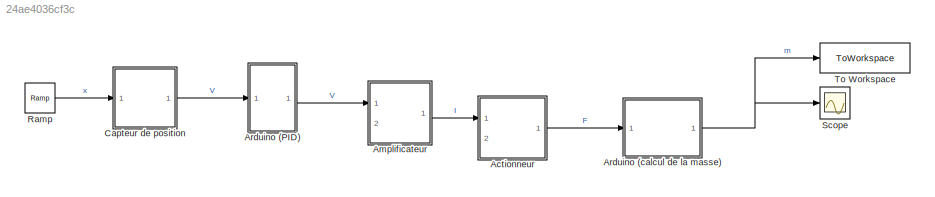
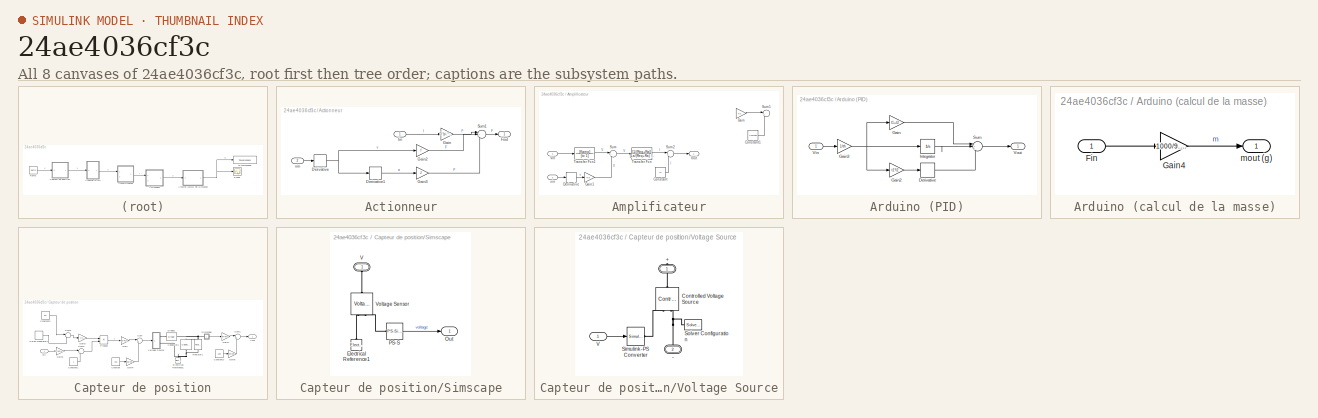
[diagram: thumbnail index - all 8 canvases of the model, root first then tree order]
MODEL slx_24ae4036cf3c
KIND model
CONFIG AbsTol = auto
CONFIG EnableMultiTasking = off
CONFIG FixedStep = auto
CONFIG MaxStep = auto
CONFIG MinStep = auto
CONFIG RelTol = 1e-3
CONFIG SampleTimeConstraint = Unconstrained
CONFIG Solver = VariableStepAuto
CONFIG SolverName = VariableStepAuto
CONFIG StartTime = 0.0
CONFIG StopTime = 2
WORKSPACE source: mxarray member
WORKSPACE t1 = 1
WORKSPACE t2 = 1
WORKSPACE th = 1
BLOCK [SubSystem] Actionneur
  Ports = [2, 1]
  RequestExecContextInheritance = off
BLOCK [Derivative] Actionneur/Derivative
BLOCK [Derivative] Actionneur/Derivative1
BLOCK [Outport] Actionneur/Fout
BLOCK [Gain] Actionneur/Gain
  Gain = D.*pi.*B.*N
BLOCK [Gain] Actionneur/Gain2
  Gain = f
BLOCK [Gain] Actionneur/Gain3
  Gain = J
BLOCK [Inport] Actionneur/Iin
BLOCK [Sum] Actionneur/Sum1
  Inputs = |+--
  Ports = [3, 1]
BLOCK [Inport] Actionneur/xin
  Port = 2
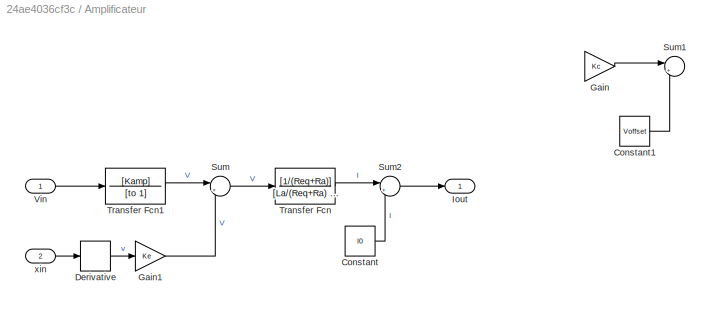
BLOCK [SubSystem] Amplificateur
  Ports = [2, 1]
  RequestExecContextInheritance = off
BLOCK [Constant] Amplificateur/Constant
  Value = I0
BLOCK [Constant] Amplificateur/Constant1
  Commented = on
  Value = Voffset
BLOCK [Derivative] Amplificateur/Derivative
BLOCK [Gain] Amplificateur/Gain
  Commented = on
  Gain = Kc
BLOCK [Gain] Amplificateur/Gain1
  Gain = Ke
BLOCK [Outport] Amplificateur/Iout
BLOCK [Sum] Amplificateur/Sum
  Inputs = |+-
  Ports = [2, 1]
BLOCK [Sum] Amplificateur/Sum1
  Commented = on
  Inputs = |++
  Ports = [2, 1]
BLOCK [Sum] Amplificateur/Sum2
  Inputs = |+-
  Ports = [2, 1]
BLOCK [TransferFcn] Amplificateur/Transfer Fcn
  Denominator = [La/(Req+Ra) 1]
  Numerator = [1/(Req+Ra)]
BLOCK [TransferFcn] Amplificateur/Transfer Fcn1
  Denominator = [to 1]
  Numerator = [Kamp]
BLOCK [Inport] Amplificateur/Vin
BLOCK [Inport] Amplificateur/xin
  Port = 2
BLOCK [SubSystem] Arduino (PID)
  Ports = [1, 1]
  RequestExecContextInheritance = off
BLOCK [Derivative] Arduino (PID)/Derivative
BLOCK [Gain] Arduino (PID)/Gain
  Gain = t1+t2
BLOCK [Gain] Arduino (PID)/Gain2
  Gain = t1*t2
BLOCK [Gain] Arduino (PID)/Gain3
  Gain = 1/th
BLOCK [Integrator] Arduino (PID)/Integrator
  Ports = [1, 1]
BLOCK [Sum] Arduino (PID)/Sum
  Inputs = |+++
  Ports = [3, 1]
BLOCK [Inport] Arduino (PID)/Vin
BLOCK [Outport] Arduino (PID)/Vout
BLOCK [SubSystem] Arduino (calcul de la masse)
  Ports = [1, 1]
  RequestExecContextInheritance = off
BLOCK [Inport] Arduino (calcul de la masse)/Fin
BLOCK [Gain] Arduino (calcul de la masse)/Gain4
  Gain = 1000/9.80665
BLOCK [Outport] Arduino (calcul de la masse)/mout (g)
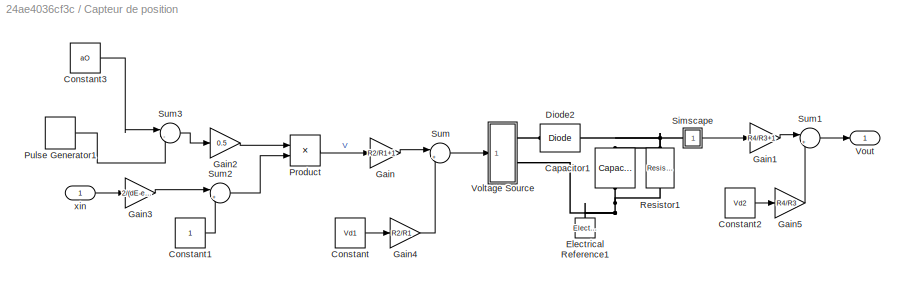
BLOCK [SubSystem] Capteur de position
  Ports = [1, 1]
  RequestExecContextInheritance = off
BLOCK [Reference] Capteur de position/Capacitor1  REF=fl_lib/Electrical/Electrical Elements/Capacitor
  NameLocation = left
  Ports = [0, 0, 0, 0, 0, 1, 1]
  SourceBlock = fl_lib/Electrical/Electrical Elements/Capacitor
  SourceProductBaseCode = SS
  SourceType = Capacitor
BLOCK [Constant] Capteur de position/Constant
  Value = Vd1
BLOCK [Constant] Capteur de position/Constant1
BLOCK [Constant] Capteur de position/Constant2
  Value = Vd2
BLOCK [Constant] Capteur de position/Constant3
  Value = aO
BLOCK [Reference] Capteur de position/Diode2  REF=fl_lib/Electrical/Electrical Elements/Diode
  Ports = [0, 0, 0, 0, 0, 1, 1]
  SourceBlock = fl_lib/Electrical/Electrical Elements/Diode
  SourceProductBaseCode = SS
  SourceType = Diode
BLOCK [Reference] Capteur de position/Electrical Reference1  REF=fl_lib/Electrical/Electrical Elements/Electrical Reference
  NameLocation = right
  Ports = [0, 0, 0, 0, 0, 1]
  SourceBlock = fl_lib/Electrical/Electrical Elements/Electrical Reference
  SourceProductBaseCode = SS
  SourceType = Electrical Reference
BLOCK [Gain] Capteur de position/Gain
  Gain = R2/R1+1
BLOCK [Gain] Capteur de position/Gain1
  Gain = R4/R3+1
BLOCK [Gain] Capteur de position/Gain2
  Gain = 0.5
BLOCK [Gain] Capteur de position/Gain3
  Gain = 2/(dE-eL)
BLOCK [Gain] Capteur de position/Gain4
  Gain = R2/R1
BLOCK [Gain] Capteur de position/Gain5
  Gain = R4/R3
BLOCK [Product] Capteur de position/Product
  Ports = [2, 1]
BLOCK [DiscretePulseGenerator] Capteur de position/Pulse Generator1
  Amplitude = 2*aO
  Period = 0.000001
  Ports = [0, 1]
  PulseType = Time based
  PulseWidth = 50
BLOCK [Reference] Capteur de position/Resistor1  REF=fl_lib/Electrical/Electrical Elements/Resistor
  Ports = [0, 0, 0, 0, 0, 1, 1]
  SourceBlock = fl_lib/Electrical/Electrical Elements/Resistor
  SourceProductBaseCode = SS
  SourceType = Resistor
BLOCK [SubSystem] Capteur de position/Simscape
  Ports = [0, 1, 0, 0, 0, 1]
  RequestExecContextInheritance = off
BLOCK [Reference] Capteur de position/Simscape/Electrical Reference1  REF=fl_lib/Electrical/Electrical Elements/Electrical Reference
  NameLocation = right
  Ports = [0, 0, 0, 0, 0, 1]
  SourceBlock = fl_lib/Electrical/Electrical Elements/Electrical Reference
  SourceProductBaseCode = SS
  SourceType = Electrical Reference
BLOCK [Outport] Capteur de position/Simscape/Out
  VectorParamsAs1DForOutWhenUnconnected = off
BLOCK [Reference] Capteur de position/Simscape/PS-S  REF=nesl_utility/PS-Simulink
Converter
  Ports = [0, 1, 0, 0, 0, 1]
  SourceBlock = nesl_utility/PS-Simulink\nConverter
  SourceProductBaseCode = SS
  SourceType = PS-Simulink\nConverter
BLOCK [PMIOPort] Capteur de position/Simscape/V
  NameLocation = right
  Side = Left
BLOCK [Reference] Capteur de position/Simscape/Voltage Sensor  REF=fl_lib/Electrical/Electrical Sensors/Voltage Sensor
  NameLocation = right
  Ports = [0, 0, 0, 0, 0, 1, 2]
  SourceBlock = fl_lib/Electrical/Electrical Sensors/Voltage Sensor
  SourceProductBaseCode = SS
  SourceType = Voltage Sensor
BLOCK [Sum] Capteur de position/Sum
  Inputs = |+-
  Ports = [2, 1]
BLOCK [Sum] Capteur de position/Sum1
  Inputs = |+-
  Ports = [2, 1]
BLOCK [Sum] Capteur de position/Sum2
  Inputs = |++
  Ports = [2, 1]
BLOCK [Sum] Capteur de position/Sum3
  Inputs = |-+
  Ports = [2, 1]
BLOCK [SubSystem] Capteur de position/Voltage Source
  Ports = [1, 0, 0, 0, 0, 0, 2]
  RequestExecContextInheritance = off
BLOCK [PMIOPort] Capteur de position/Voltage Source/+
  NameLocation = right
  Side = Right
BLOCK [PMIOPort] Capteur de position/Voltage Source/-
  NameLocation = right
  Port = 2
  Side = Right
BLOCK [Reference] Capteur de position/Voltage Source/Controlled Voltage Source  REF=fl_lib/Electrical/Electrical Sources/Controlled Voltage
Source
  NameLocation = right
  Ports = [0, 0, 0, 0, 0, 1, 2]
  SourceBlock = fl_lib/Electrical/Electrical Sources/Controlled Voltage\nSource
  SourceProductBaseCode = SS
  SourceType = Controlled Voltage\nSource
BLOCK [Reference] Capteur de position/Voltage Source/Simulink-PS Converter  REF=nesl_utility/Simulink-PS
Converter
  Ports = [1, 0, 0, 0, 0, 0, 1]
  SourceBlock = nesl_utility/Simulink-PS\nConverter
  SourceProductBaseCode = SS
  SourceType = Simulink-PS\nConverter
BLOCK [Reference] Capteur de position/Voltage Source/Solver Configuration  REF=nesl_utility/Solver
Configuration
  Ports = [0, 0, 0, 0, 0, 0, 1]
  SourceBlock = nesl_utility/Solver\nConfiguration
  SourceProductBaseCode = SS
  SourceType = Solver\nConfiguration
BLOCK [Inport] Capteur de position/Voltage Source/V
BLOCK [Outport] Capteur de position/Vout
BLOCK [Inport] Capteur de position/xin
BLOCK [Reference] Ramp  REF=simulink/Sources/Ramp
  Ports = [0, 1]
  SourceBlock = simulink/Sources/Ramp
  SourceProductBaseCode = SL
  SourceType = Ramp
BLOCK [Scope] Scope
  Floating = off
  NumInputPorts = 1
  Ports = [1]
  ScopeSpecificationString = Simulink.scopes.TimeScopeBlockCfg('CurrentConfiguration', extmgr.ConfigurationSet(extmgr.Configuration('Core','General UI',true),extmgr.Configuration('Core','Source UI',true),extmgr.Configuration('Sources','WiredSimulink',true),extmgr.Configuration('Visuals','Time Domain',true,'SerializedDisplays',{struct('MinYLimReal','-0.24013','MaxYLimReal','2.16117','YLabelReal','','MinYLimMag','0.00000','MaxY...<+1419ch>
BLOCK [ToWorkspace] To Workspace
  FixptAsFi = on
  MaxDataPoints = inf
  Ports = [1]
  SampleTime = -1
  SaveFormat = Timeseries
  VariableName = balance
LINE Actionneur/Derivative1:1 -> Actionneur/Gain3:1
NET Actionneur/Derivative:1 -> Actionneur/Derivative1:1, Actionneur/Gain2:1
LINE Actionneur/Gain2:1 -> Actionneur/Sum1:2
LINE Actionneur/Gain3:1 -> Actionneur/Sum1:3
LINE Actionneur/Gain:1 -> Actionneur/Sum1:1
LINE Actionneur/Iin:1 -> Actionneur/Gain:1
LINE Actionneur/Sum1:1 -> Actionneur/Fout:1
LINE Actionneur/xin:1 -> Actionneur/Derivative:1
LINE Actionneur:1 -> Arduino (calcul de la masse):1
LINE Amplificateur/Constant1:1 -> Amplificateur/Sum1:2
LINE Amplificateur/Constant:1 -> Amplificateur/Sum2:2
LINE Amplificateur/Derivative:1 -> Amplificateur/Gain1:1
LINE Amplificateur/Gain1:1 -> Amplificateur/Sum:2
LINE Amplificateur/Gain:1 -> Amplificateur/Sum1:1
LINE Amplificateur/Sum2:1 -> Amplificateur/Iout:1
LINE Amplificateur/Sum:1 -> Amplificateur/Transfer Fcn:1
LINE Amplificateur/Transfer Fcn1:1 -> Amplificateur/Sum:1
LINE Amplificateur/Transfer Fcn:1 -> Amplificateur/Sum2:1
LINE Amplificateur/Vin:1 -> Amplificateur/Transfer Fcn1:1
LINE Amplificateur/xin:1 -> Amplificateur/Derivative:1
LINE Amplificateur:1 -> Actionneur:1
LINE Arduino (PID)/Derivative:1 -> Arduino (PID)/Sum:3
LINE Arduino (PID)/Gain2:1 -> Arduino (PID)/Derivative:1
NET Arduino (PID)/Gain3:1 -> Arduino (PID)/Gain2:1, Arduino (PID)/Gain:1, Arduino (PID)/Integrator:1
LINE Arduino (PID)/Gain:1 -> Arduino (PID)/Sum:1
LINE Arduino (PID)/Integrator:1 -> Arduino (PID)/Sum:2
LINE Arduino (PID)/Sum:1 -> Arduino (PID)/Vout:1
LINE Arduino (PID)/Vin:1 -> Arduino (PID)/Gain3:1
LINE Arduino (PID):1 -> Amplificateur:1
LINE Arduino (calcul de la masse)/Fin:1 -> Arduino (calcul de la masse)/Gain4:1
LINE Arduino (calcul de la masse)/Gain4:1 -> Arduino (calcul de la masse)/mout (g):1
NET Arduino (calcul de la masse):1 -> Scope:1, To Workspace:1
LINE Capteur de position/Constant1:1 -> Capteur de position/Sum2:2
LINE Capteur de position/Constant2:1 -> Capteur de position/Gain5:1
LINE Capteur de position/Constant3:1 -> Capteur de position/Sum3:1
LINE Capteur de position/Constant:1 -> Capteur de position/Gain4:1
LINE Capteur de position/Gain1:1 -> Capteur de position/Sum1:1
LINE Capteur de position/Gain2:1 -> Capteur de position/Product:1
LINE Capteur de position/Gain3:1 -> Capteur de position/Sum2:1
LINE Capteur de position/Gain4:1 -> Capteur de position/Sum:2
LINE Capteur de position/Gain5:1 -> Capteur de position/Sum1:2
LINE Capteur de position/Gain:1 -> Capteur de position/Sum:1
LINE Capteur de position/Product:1 -> Capteur de position/Gain:1
LINE Capteur de position/Pulse Generator1:1 -> Capteur de position/Sum3:2
LINE Capteur de position/Simscape/PS-S:1 -> Capteur de position/Simscape/Out:1
LINE Capteur de position/Simscape:1 -> Capteur de position/Gain1:1
LINE Capteur de position/Sum1:1 -> Capteur de position/Vout:1
LINE Capteur de position/Sum2:1 -> Capteur de position/Product:2
LINE Capteur de position/Sum3:1 -> Capteur de position/Gain2:1
LINE Capteur de position/Sum:1 -> Capteur de position/Voltage Source:1
LINE Capteur de position/Voltage Source/V:1 -> Capteur de position/Voltage Source/Simulink-PS Converter:1
LINE Capteur de position/xin:1 -> Capteur de position/Gain3:1
LINE Capteur de position:1 -> Arduino (PID):1
LINE Ramp:1 -> Capteur de position:1
PNET net1: Capteur de position/Capacitor1:LConn1 -- Capteur de position/Diode2:RConn1 -- Capteur de position/Resistor1:LConn1 -- Capteur de position/Simscape:LConn1
PNET net2: Capteur de position/Capacitor1:RConn1 -- Capteur de position/Electrical Reference1:LConn1 -- Capteur de position/Resistor1:RConn1 -- Capteur de position/Voltage Source:RConn2
PLINE Capteur de position/Diode2:LConn1 -- Capteur de position/Voltage Source:RConn1
PLINE Capteur de position/Simscape/Electrical Reference1:LConn1 -- Capteur de position/Simscape/Voltage Sensor:RConn2
PLINE Capteur de position/Simscape/PS-S:LConn1 -- Capteur de position/Simscape/Voltage Sensor:RConn1
PLINE Capteur de position/Simscape/V:RConn1 -- Capteur de position/Simscape/Voltage Sensor:LConn1
PLINE Capteur de position/Voltage Source/+:RConn1 -- Capteur de position/Voltage Source/Controlled Voltage Source:LConn1
PNET net3: Capteur de position/Voltage Source/-:RConn1 -- Capteur de position/Voltage Source/Controlled Voltage Source:RConn2 -- Capteur de position/Voltage Source/Solver Configuration:RConn1
PLINE Capteur de position/Voltage Source/Controlled Voltage Source:RConn1 -- Capteur de position/Voltage Source/Simulink-PS Converter:RConn1
note: NET lines group one-source signal fan-out (src -> all destinations, sorted); 1:1 wires keep LINE; PNET lines group multi-terminal physical nets as a canonical sorted terminal list (undirected conserving connections); 2-terminal nets keep the pairwise PLINE form
